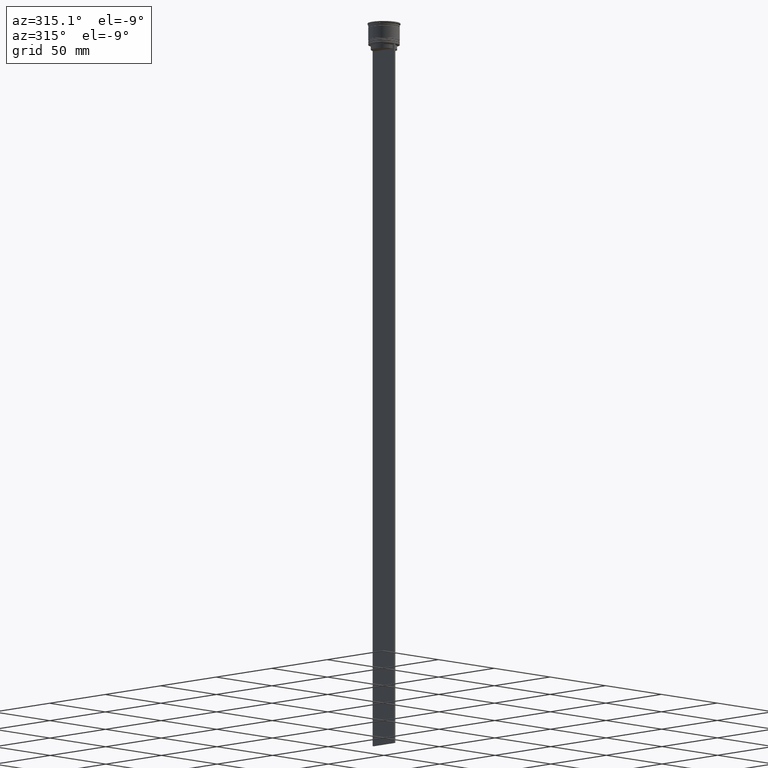
[diagram: clean part render]
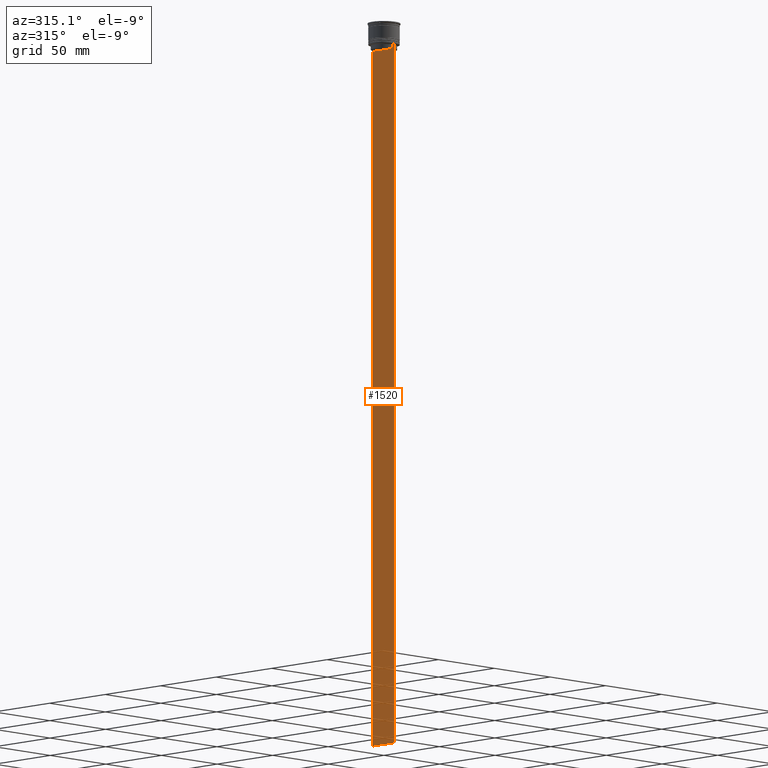
[diagram: same view with one face highlighted and labeled with its STEP entity id]
A machine part, auxiliary view. The second image highlights one B-rep face of the part: STEP entity #1520.
In plain terms, the highlighted planar face has unit normal (-1, 0, 0).
Its self-contained STEP definition (entity closure, byte-faithful):
#3 = DIRECTION ( 'NONE',  ( 0.000000000000000000, 0.000000000000000000, -1.000000000000000000 ) ) ;
#19 = B_SPLINE_CURVE_WITH_KNOTS ( 'NONE', 3,
 ( #767, #1450, #1922, #502 ),
 .UNSPECIFIED., .F., .F.,
 ( 4, 4 ),
 ( 0.01511546479386908018, 0.01582316445439079997 ),
 .UNSPECIFIED. ) ;
#67 = ORIENTED_EDGE ( 'NONE', *, *, #603, .F. ) ;
#86 = LINE ( 'NONE', #1261, #2576 ) ;
#99 = EDGE_CURVE ( 'NONE', #853, #973, #1062, .T. ) ;
#110 = LINE ( 'NONE', #1276, #1227 ) ;
#135 = CARTESIAN_POINT ( 'NONE',  ( -0.5000000000000001110, -8.552060194457773434, -14.33334167772667023 ) ) ;
#208 = CARTESIAN_POINT ( 'NONE',  ( -0.5000000000000001110, -9.749999999999998224, 5.525624189766635830 ) ) ;
#211 = EDGE_CURVE ( 'NONE', #524, #1679, #110, .T. ) ;
#237 = ORIENTED_EDGE ( 'NONE', *, *, #793, .F. ) ;
#261 = FACE_OUTER_BOUND ( 'NONE', #2161, .T. ) ;
#471 = CARTESIAN_POINT ( 'NONE',  ( -0.5000000000000001110, 8.400000000000003908, -17.00000000000000000 ) ) ;
#479 = ORIENTED_EDGE ( 'NONE', *, *, #211, .F. ) ;
#490 = CARTESIAN_POINT ( 'NONE',  ( -0.5000000000000001110, 8.885943956609230199, -14.00000000000000178 ) ) ;
#502 = CARTESIAN_POINT ( 'NONE',  ( -0.5000000000000001110, 8.385105843100616241, -14.50000000000000000 ) ) ;
#517 = ORIENTED_EDGE ( 'NONE', *, *, #1643, .F. ) ;
#524 = VERTEX_POINT ( 'NONE', #1622 ) ;
#549 = CARTESIAN_POINT ( 'NONE',  ( -0.5000000000000001110, -8.385105843100616241, -14.50000000000000000 ) ) ;
#603 = EDGE_CURVE ( 'NONE', #2398, #524, #1072, .T. ) ;
#608 = VECTOR ( 'NONE', #915, 1000.000000000000000 ) ;
#651 = CARTESIAN_POINT ( 'NONE',  ( -0.5000000000000001110, 9.750000000000001776, 5.525624189766635830 ) ) ;
#669 = DIRECTION ( 'NONE',  ( -0.000000000000000000, -0.000000000000000000, 1.000000000000000000 ) ) ;
#683 = CARTESIAN_POINT ( 'NONE',  ( -0.5000000000000001110, 8.385105843100616241, -17.00000000000000000 ) ) ;
#725 = CARTESIAN_POINT ( 'NONE',  ( -0.5000000000000001110, -9.749999999999998224, -14.00000000000000178 ) ) ;
#756 = CARTESIAN_POINT ( 'NONE',  ( -0.5000000000000001110, 9.749999999999998224, -14.00000000000000178 ) ) ;
#767 = CARTESIAN_POINT ( 'NONE',  ( -0.5000000000000001110, 8.885943956609230199, -14.00000000000000178 ) ) ;
#793 = EDGE_CURVE ( 'NONE', #2158, #2380, #856, .T. ) ;
#805 = LINE ( 'NONE', #2395, #2083 ) ;
#853 = VERTEX_POINT ( 'NONE', #2470 ) ;
#856 = LINE ( 'NONE', #1446, #1309 ) ;
#870 = VERTEX_POINT ( 'NONE', #1903 ) ;
#915 = DIRECTION ( 'NONE',  ( 0.000000000000000000, -1.000000000000000000, 0.000000000000000000 ) ) ;
#973 = VERTEX_POINT ( 'NONE', #1213 ) ;
#974 = CARTESIAN_POINT ( 'NONE',  ( -0.5000000000000001110, 9.750000000000001776, -464.0000000000000000 ) ) ;
#986 = VECTOR ( 'NONE', #1306, 1000.000000000000000 ) ;
#1028 = DIRECTION ( 'NONE',  ( 0.000000000000000000, 0.000000000000000000, 1.000000000000000000 ) ) ;
#1062 = LINE ( 'NONE', #725, #986 ) ;
#1072 = LINE ( 'NONE', #471, #608 ) ;
#1117 = VECTOR ( 'NONE', #1652, 1000.000000000000000 ) ;
#1144 = CARTESIAN_POINT ( 'NONE',  ( -0.5000000000000001110, -8.719005764482790966, -14.16667454151159689 ) ) ;
#1166 = EDGE_CURVE ( 'NONE', #1560, #2398, #86, .T. ) ;
#1213 = CARTESIAN_POINT ( 'NONE',  ( -0.5000000000000001110, -9.749999999999998224, -14.00000000000000178 ) ) ;
#1227 = VECTOR ( 'NONE', #669, 1000.000000000000000 ) ;
#1260 = EDGE_CURVE ( 'NONE', #973, #870, #2105, .T. ) ;
#1261 = CARTESIAN_POINT ( 'NONE',  ( -0.5000000000000001110, 8.385105843100616241, 0.000000000000000000 ) ) ;
#1276 = CARTESIAN_POINT ( 'NONE',  ( -0.5000000000000001110, -8.385105843100616241, 0.000000000000000000 ) ) ;
#1288 = DIRECTION ( 'NONE',  ( 0.000000000000000000, 0.000000000000000000, -1.000000000000000000 ) ) ;
#1306 = DIRECTION ( 'NONE',  ( 0.000000000000000000, -1.000000000000000000, 0.000000000000000000 ) ) ;
#1309 = VECTOR ( 'NONE', #2257, 1000.000000000000000 ) ;
#1312 = VECTOR ( 'NONE', #3, 1000.000000000000000 ) ;
#1374 = DIRECTION ( 'NONE',  ( 0.000000000000000000, 1.000000000000000000, 0.000000000000000000 ) ) ;
#1379 = ORIENTED_EDGE ( 'NONE', *, *, #2255, .F. ) ;
#1416 = VERTEX_POINT ( 'NONE', #974 ) ;
#1446 = CARTESIAN_POINT ( 'NONE',  ( -0.5000000000000001110, -9.749999999999998224, -14.00000000000000178 ) ) ;
#1450 = CARTESIAN_POINT ( 'NONE',  ( -0.5000000000000001110, 8.719005771582351016, -14.16667453442324742 ) ) ;
#1520 = ADVANCED_FACE ( 'NONE', ( #261 ), #2202, .T. ) ;
#1538 = EDGE_CURVE ( 'NONE', #2158, #1416, #2411, .T. ) ;
#1560 = VERTEX_POINT ( 'NONE', #2028 ) ;
#1622 = CARTESIAN_POINT ( 'NONE',  ( -0.5000000000000001110, -8.385105843100616241, -17.00000000000000000 ) ) ;
#1643 = EDGE_CURVE ( 'NONE', #1679, #853, #2125, .T. ) ;
#1652 = DIRECTION ( 'NONE',  ( 0.000000000000000000, 0.000000000000000000, -1.000000000000000000 ) ) ;
#1661 = AXIS2_PLACEMENT_3D ( 'NONE', #1816, #2031, #1028 ) ;
#1679 = VERTEX_POINT ( 'NONE', #549 ) ;
#1725 = CARTESIAN_POINT ( 'NONE',  ( -0.5000000000000001110, -8.885943956609230199, -14.00000000000000178 ) ) ;
#1764 = EDGE_CURVE ( 'NONE', #2380, #1560, #19, .T. ) ;
#1816 = CARTESIAN_POINT ( 'NONE',  ( -0.5000000000000001110, -9.749999999999998224, 5.525624189766635830 ) ) ;
#1890 = ORIENTED_EDGE ( 'NONE', *, *, #1538, .T. ) ;
#1903 = CARTESIAN_POINT ( 'NONE',  ( -0.5000000000000001110, -9.749999999999998224, -464.0000000000000000 ) ) ;
#1922 = CARTESIAN_POINT ( 'NONE',  ( -0.5000000000000001110, 8.552060201981381837, -14.33334167021640226 ) ) ;
#1941 = ORIENTED_EDGE ( 'NONE', *, *, #1166, .F. ) ;
#1963 = CARTESIAN_POINT ( 'NONE',  ( -0.5000000000000001110, -8.385105843100616241, -14.50000000000000000 ) ) ;
#2016 = ORIENTED_EDGE ( 'NONE', *, *, #1764, .F. ) ;
#2028 = CARTESIAN_POINT ( 'NONE',  ( -0.5000000000000001110, 8.385105843100616241, -14.50000000000000000 ) ) ;
#2031 = DIRECTION ( 'NONE',  ( -1.000000000000000000, 0.000000000000000000, 0.000000000000000000 ) ) ;
#2083 = VECTOR ( 'NONE', #1374, 1000.000000000000000 ) ;
#2105 = LINE ( 'NONE', #208, #1312 ) ;
#2125 = B_SPLINE_CURVE_WITH_KNOTS ( 'NONE', 3,
 ( #1963, #135, #1144, #1725 ),
 .UNSPECIFIED., .F., .F.,
 ( 4, 4 ),
 ( 0.03898465126933130243, 0.03969388910599658260 ),
 .UNSPECIFIED. ) ;
#2158 = VERTEX_POINT ( 'NONE', #756 ) ;
#2161 = EDGE_LOOP ( 'NONE', ( #2016, #237, #1890, #1379, #2460, #2308, #517, #479, #67, #1941 ) ) ;
#2202 = PLANE ( 'NONE',  #1661 ) ;
#2255 = EDGE_CURVE ( 'NONE', #870, #1416, #805, .T. ) ;
#2257 = DIRECTION ( 'NONE',  ( 0.000000000000000000, -1.000000000000000000, 0.000000000000000000 ) ) ;
#2308 = ORIENTED_EDGE ( 'NONE', *, *, #99, .F. ) ;
#2380 = VERTEX_POINT ( 'NONE', #490 ) ;
#2395 = CARTESIAN_POINT ( 'NONE',  ( -0.5000000000000001110, -9.749999999999998224, -464.0000000000000000 ) ) ;
#2398 = VERTEX_POINT ( 'NONE', #683 ) ;
#2411 = LINE ( 'NONE', #651, #1117 ) ;
#2460 = ORIENTED_EDGE ( 'NONE', *, *, #1260, .F. ) ;
#2470 = CARTESIAN_POINT ( 'NONE',  ( -0.5000000000000001110, -8.885943956609230199, -14.00000000000000178 ) ) ;
#2576 = VECTOR ( 'NONE', #1288, 1000.000000000000000 ) ;